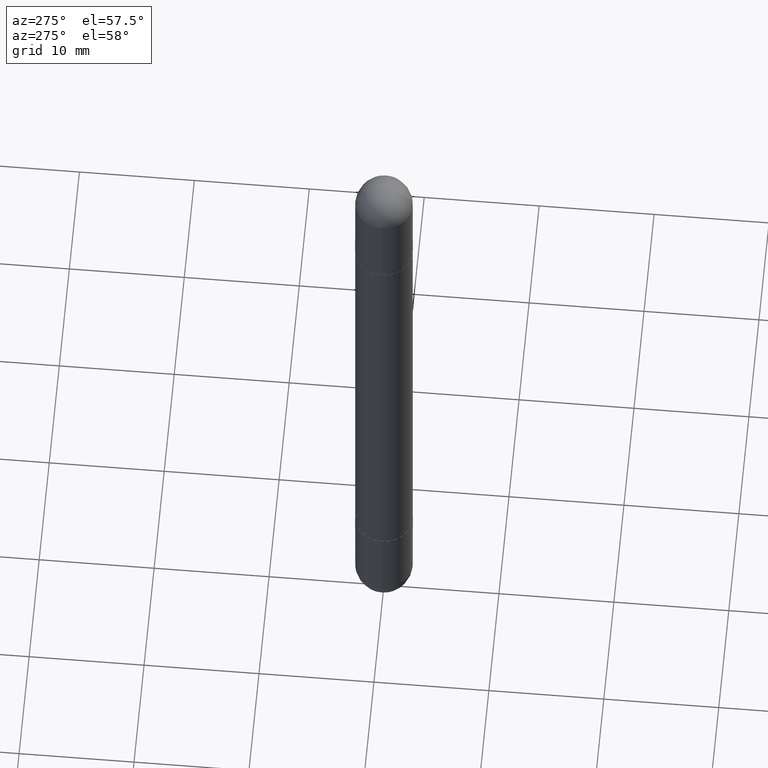
[diagram: clean part render]
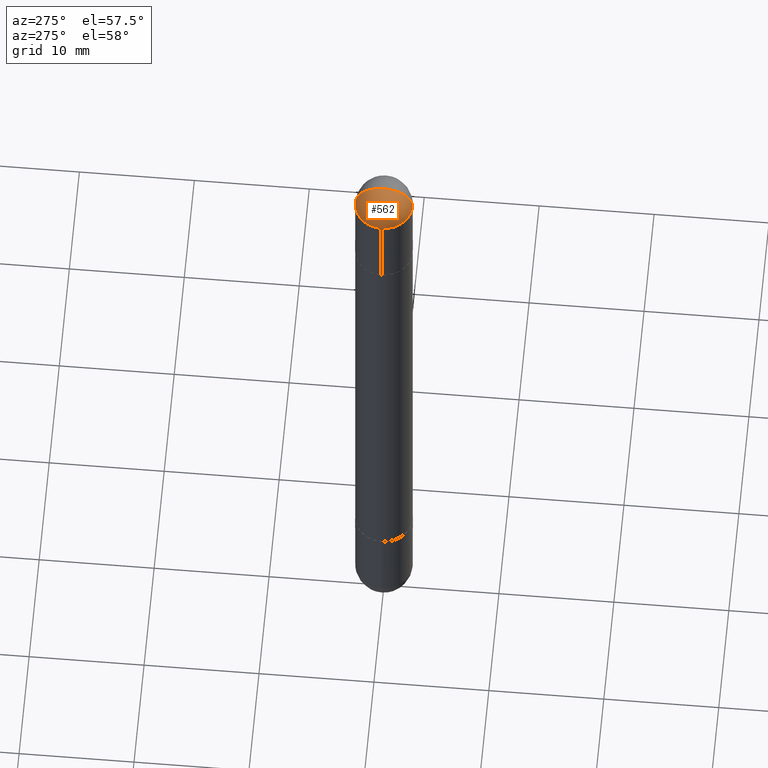
[diagram: same view with one face highlighted and labeled with its STEP entity id]
A machine part, auxiliary view. The second image highlights one B-rep face of the part: STEP entity #562.
In plain terms, the highlighted spherical surface has radius 2.5006 mm.
Its self-contained STEP definition (entity closure, byte-faithful):
#2 = VERTEX_POINT ( 'NONE', #238 ) ;
#28 = ORIENTED_EDGE ( 'NONE', *, *, #67, .T. ) ;
#67 = EDGE_CURVE ( 'NONE', #97, #2, #770, .T. ) ;
#97 = VERTEX_POINT ( 'NONE', #505 ) ;
#133 = DIRECTION ( 'NONE',  ( 2.445468806185136597E-29, -3.491481338843145583E-15, 1.000000000000000000 ) ) ;
#171 = FACE_OUTER_BOUND ( 'NONE', #593, .T. ) ;
#198 = CARTESIAN_POINT ( 'NONE',  ( 5.738586058125595532E-29, -9.128075209003904434E-15, 3.073328992872296367E-16 ) ) ;
#211 = AXIS2_PLACEMENT_3D ( 'NONE', #676, #307, #739 ) ;
#216 = CARTESIAN_POINT ( 'NONE',  ( 5.493620098098182533E-29, -8.790367195063598563E-15, -0.09844999999999987095 ) ) ;
#233 = DIRECTION ( 'NONE',  ( 1.000000000000000000, -6.982962677686273810E-15, 0.000000000000000000 ) ) ;
#238 = CARTESIAN_POINT ( 'NONE',  ( -0.09845000000000000973, -7.125338866396221621E-15, -0.09844999999999987095 ) ) ;
#282 = EDGE_CURVE ( 'NONE', #472, #97, #439, .T. ) ;
#303 = VERTEX_POINT ( 'NONE', #543 ) ;
#307 = DIRECTION ( 'NONE',  ( -1.000000000000000000, 6.982962677686265922E-15, 4.883557194083112340E-29 ) ) ;
#321 = DIRECTION ( 'NONE',  ( 6.982962677686265922E-15, 1.000000000000000000, 3.468572871589967054E-15 ) ) ;
#344 = CIRCLE ( 'NONE', #627, 0.09845000000000017626 ) ;
#381 = ORIENTED_EDGE ( 'NONE', *, *, #532, .F. ) ;
#437 = EDGE_CURVE ( 'NONE', #2, #303, #683, .T. ) ;
#439 = CIRCLE ( 'NONE', #211, 0.09845000000000017626 ) ;
#472 = VERTEX_POINT ( 'NONE', #198 ) ;
#480 = DIRECTION ( 'NONE',  ( 2.445468806185136597E-29, -3.491481338843145583E-15, 1.000000000000000000 ) ) ;
#505 = CARTESIAN_POINT ( 'NONE',  ( 6.874726756182700483E-16, 0.09844999999999154427, -0.09844999999999953788 ) ) ;
#514 = AXIS2_PLACEMENT_3D ( 'NONE', #796, #480, #233 ) ;
#532 = EDGE_CURVE ( 'NONE', #472, #303, #344, .T. ) ;
#537 = CARTESIAN_POINT ( 'NONE',  ( 5.493620098098182533E-29, -8.790367195063598563E-15, -0.09844999999999987095 ) ) ;
#543 = CARTESIAN_POINT ( 'NONE',  ( -6.754160278805513950E-16, -0.09845000000000865559, -0.09845000000000021789 ) ) ;
#551 = CARTESIAN_POINT ( 'NONE',  ( 5.824739876012068780E-29, -8.316184826923546689E-15, -0.09844999999999987095 ) ) ;
#557 = AXIS2_PLACEMENT_3D ( 'NONE', #551, #133, #725 ) ;
#562 = ADVANCED_FACE ( 'NONE', ( #171 ), #778, .T. ) ;
#566 = DIRECTION ( 'NONE',  ( 1.000000000000000000, -6.982962677686265922E-15, -4.883557194083112901E-29 ) ) ;
#593 = EDGE_LOOP ( 'NONE', ( #381, #742, #28, #714 ) ) ;
#627 = AXIS2_PLACEMENT_3D ( 'NONE', #537, #791, #794 ) ;
#676 = CARTESIAN_POINT ( 'NONE',  ( 5.493620098098182533E-29, -8.790367195063598563E-15, -0.09844999999999987095 ) ) ;
#683 = CIRCLE ( 'NONE', #557, 0.09845000000000000973 ) ;
#714 = ORIENTED_EDGE ( 'NONE', *, *, #437, .T. ) ;
#725 = DIRECTION ( 'NONE',  ( 1.000000000000000000, -6.982962677686273810E-15, 0.000000000000000000 ) ) ;
#739 = DIRECTION ( 'NONE',  ( -6.982962677686265922E-15, -1.000000000000000000, 0.000000000000000000 ) ) ;
#742 = ORIENTED_EDGE ( 'NONE', *, *, #282, .T. ) ;
#770 = CIRCLE ( 'NONE', #514, 0.09845000000000000973 ) ;
#778 = SPHERICAL_SURFACE ( 'NONE', #800, 0.09845000000000017626 ) ;
#791 = DIRECTION ( 'NONE',  ( 1.000000000000000000, -6.860497997771530774E-15, -4.840798879624142912E-29 ) ) ;
#794 = DIRECTION ( 'NONE',  ( 6.860497997771531562E-15, 1.000000000000000000, 0.000000000000000000 ) ) ;
#796 = CARTESIAN_POINT ( 'NONE',  ( 5.824739876012068780E-29, -8.316184826923546689E-15, -0.09844999999999987095 ) ) ;
#800 = AXIS2_PLACEMENT_3D ( 'NONE', #216, #566, #321 ) ;